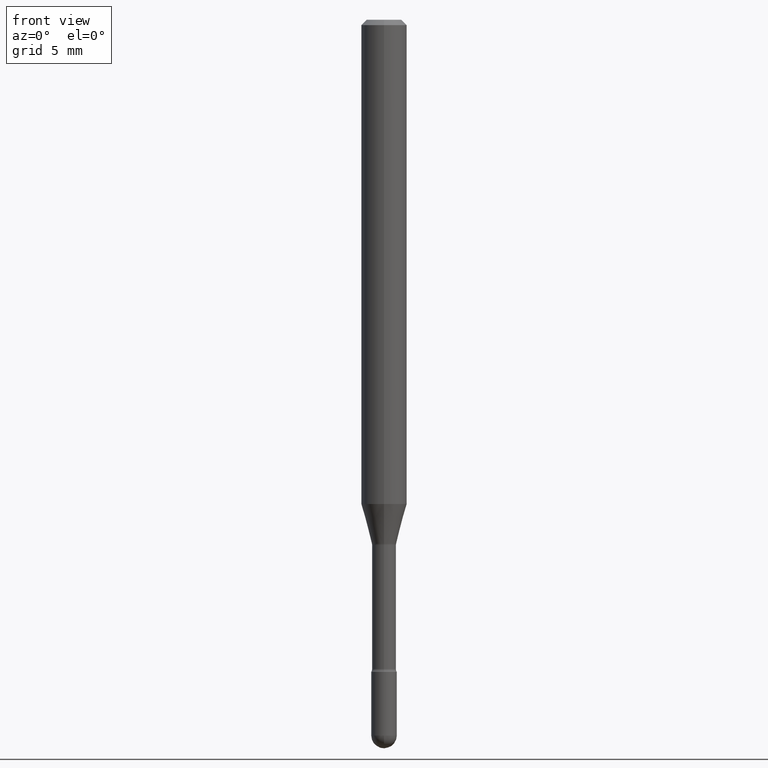
[diagram: clean part render]
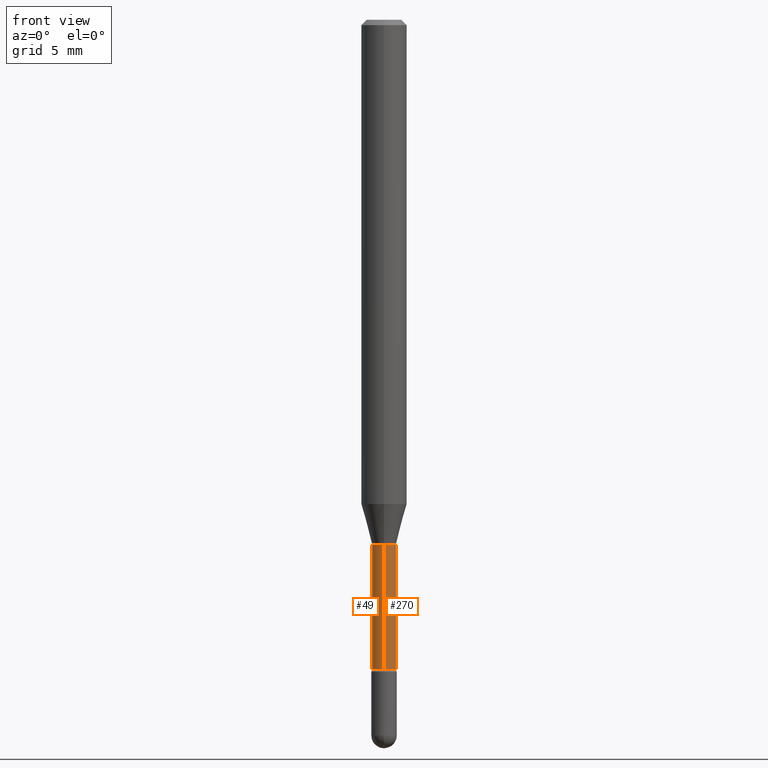
[diagram: same view with one multi-face feature highlighted, each face labeled with its STEP entity id]
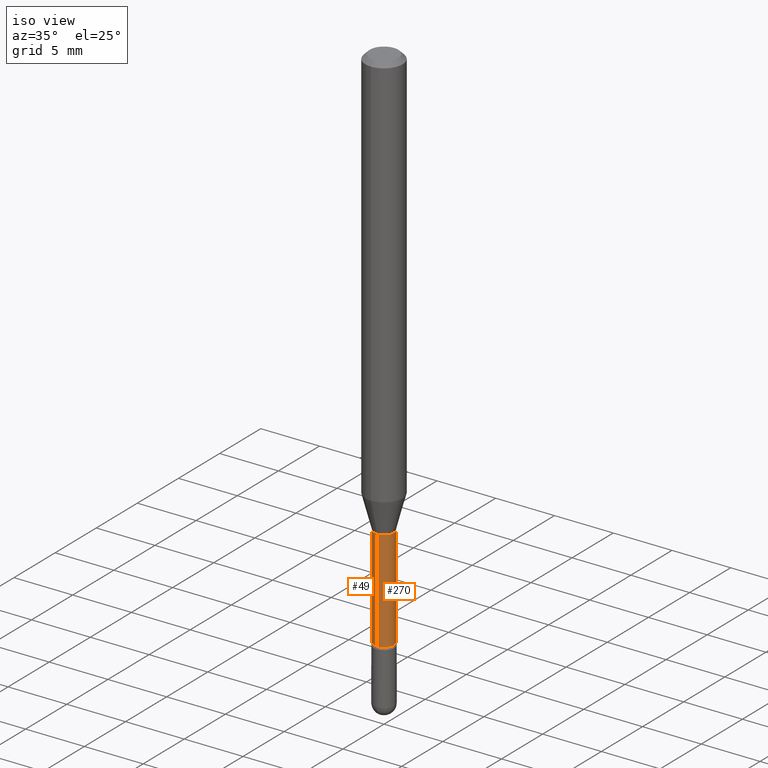
[diagram: same view with one multi-face feature highlighted, each face labeled with its STEP entity id]
A machine part, front view. The highlighted faces form ONE feature: a constant-radius fillet chain: 2 tangent blend faces with common blend radius 0.8357 mm. The faces share edges in the B-rep.
A second angle (iso view) of the same feature is appended — it is thin or edge-on in the first view.
Their STEP definitions:
[1] entity #49 (Cylinder):
#3 = FACE_OUTER_BOUND ( 'NONE', #396, .T. ) ;
#8 = EDGE_CURVE ( 'NONE', #372, #99, #413, .T. ) ;
#29 = DIRECTION ( 'NONE',  ( -2.445483522244811550E-29, 3.491460264608105036E-15, 1.000000000000000000 ) ) ;
#43 = CARTESIAN_POINT ( 'NONE',  ( 3.526325582235213320E-29, -5.034597672996613409E-15, -1.441974787463810914 ) ) ;
#49 = ADVANCED_FACE ( 'NONE', ( #3 ), #53, .T. ) ;
#53 = CYLINDRICAL_SURFACE ( 'NONE', #139, 0.03289999999999998481 ) ;
#62 = VERTEX_POINT ( 'NONE', #300 ) ;
#77 = CARTESIAN_POINT ( 'NONE',  ( 4.358696770084339745E-29, -6.222988803562137698E-15, -1.782345589506695971 ) ) ;
#87 = VECTOR ( 'NONE', #433, 39.37007874015748143 ) ;
#99 = VERTEX_POINT ( 'NONE', #204 ) ;
#109 = ORIENTED_EDGE ( 'NONE', *, *, #156, .F. ) ;
#139 = AXIS2_PLACEMENT_3D ( 'NONE', #538, #480, #262 ) ;
#156 = EDGE_CURVE ( 'NONE', #99, #462, #465, .T. ) ;
#188 = DIRECTION ( 'NONE',  ( -2.445483522244811550E-29, 3.491460264608105036E-15, 1.000000000000000000 ) ) ;
#195 = ORIENTED_EDGE ( 'NONE', *, *, #8, .F. ) ;
#204 = CARTESIAN_POINT ( 'NONE',  ( 2.337685600651165364E-16, 0.03289999999999496105, -1.441974787463810914 ) ) ;
#213 = DIRECTION ( 'NONE',  ( -6.982962677686265133E-15, -1.000000000000000000, 0.000000000000000000 ) ) ;
#251 = CIRCLE ( 'NONE', #296, 0.03289999999999996400 ) ;
#258 = CARTESIAN_POINT ( 'NONE',  ( -2.297394720958428512E-16, -0.03290000000000502939, -1.441974787463810914 ) ) ;
#262 = DIRECTION ( 'NONE',  ( -6.982962677686265922E-15, -1.000000000000000000, 3.491460264608103852E-15 ) ) ;
#288 = CARTESIAN_POINT ( 'NONE',  ( 2.412292587905978021E-16, 0.03289999999999374675, -1.782345589506695971 ) ) ;
#296 = AXIS2_PLACEMENT_3D ( 'NONE', #77, #29, #370 ) ;
#300 = CARTESIAN_POINT ( 'NONE',  ( -2.297394720958343216E-16, -0.03290000000000618818, -1.782345589506695971 ) ) ;
#336 = CARTESIAN_POINT ( 'NONE',  ( -2.297394720958780541E-16, -0.03289999999999998481, 5.929424415968526552E-16 ) ) ;
#370 = DIRECTION ( 'NONE',  ( -6.982962677686265922E-15, -1.000000000000000000, 0.000000000000000000 ) ) ;
#371 = EDGE_CURVE ( 'NONE', #372, #62, #251, .T. ) ;
#372 = VERTEX_POINT ( 'NONE', #288 ) ;
#392 = AXIS2_PLACEMENT_3D ( 'NONE', #43, #188, #213 ) ;
#396 = EDGE_LOOP ( 'NONE', ( #195, #549, #496, #109 ) ) ;
#413 = LINE ( 'NONE', #460, #563 ) ;
#424 = LINE ( 'NONE', #336, #87 ) ;
#433 = DIRECTION ( 'NONE',  ( -2.445483522244811830E-29, 3.491460264608105430E-15, 1.000000000000000000 ) ) ;
#460 = CARTESIAN_POINT ( 'NONE',  ( 2.337685600650728039E-16, 0.03289999999999998481, 3.632043561856394713E-16 ) ) ;
#462 = VERTEX_POINT ( 'NONE', #258 ) ;
#465 = CIRCLE ( 'NONE', #392, 0.03289999999999999869 ) ;
#480 = DIRECTION ( 'NONE',  ( -2.445483522244811550E-29, 3.491460264608105036E-15, 1.000000000000000000 ) ) ;
#496 = ORIENTED_EDGE ( 'NONE', *, *, #564, .T. ) ;
#538 = CARTESIAN_POINT ( 'NONE',  ( -1.169113584055446105E-44, 1.669184350826100908E-30, 4.780733988912460139E-16 ) ) ;
#549 = ORIENTED_EDGE ( 'NONE', *, *, #371, .T. ) ;
#558 = DIRECTION ( 'NONE',  ( -2.445483522244811830E-29, 3.491460264608105430E-15, 1.000000000000000000 ) ) ;
#563 = VECTOR ( 'NONE', #558, 39.37007874015748143 ) ;
#564 = EDGE_CURVE ( 'NONE', #62, #462, #424, .T. ) ;
[2] entity #270 (Cylinder):
#8 = EDGE_CURVE ( 'NONE', #372, #99, #413, .T. ) ;
#45 = CARTESIAN_POINT ( 'NONE',  ( 3.526325582235213320E-29, -5.034597672996613409E-15, -1.441974787463810914 ) ) ;
#52 = EDGE_CURVE ( 'NONE', #62, #372, #93, .T. ) ;
#62 = VERTEX_POINT ( 'NONE', #300 ) ;
#87 = VECTOR ( 'NONE', #433, 39.37007874015748143 ) ;
#93 = CIRCLE ( 'NONE', #166, 0.03289999999999996400 ) ;
#99 = VERTEX_POINT ( 'NONE', #204 ) ;
#107 = CYLINDRICAL_SURFACE ( 'NONE', #425, 0.03289999999999998481 ) ;
#133 = EDGE_CURVE ( 'NONE', #462, #99, #243, .T. ) ;
#138 = DIRECTION ( 'NONE',  ( -6.982962677686265922E-15, -1.000000000000000000, 0.000000000000000000 ) ) ;
#143 = DIRECTION ( 'NONE',  ( -6.982962677686265922E-15, -1.000000000000000000, 3.491460264608103852E-15 ) ) ;
#145 = EDGE_LOOP ( 'NONE', ( #438, #149, #321, #271 ) ) ;
#149 = ORIENTED_EDGE ( 'NONE', *, *, #8, .T. ) ;
#166 = AXIS2_PLACEMENT_3D ( 'NONE', #175, #530, #138 ) ;
#175 = CARTESIAN_POINT ( 'NONE',  ( 4.358696770084339745E-29, -6.222988803562137698E-15, -1.782345589506695971 ) ) ;
#204 = CARTESIAN_POINT ( 'NONE',  ( 2.337685600651165364E-16, 0.03289999999999496105, -1.441974787463810914 ) ) ;
#224 = DIRECTION ( 'NONE',  ( -2.445483522244811550E-29, 3.491460264608105036E-15, 1.000000000000000000 ) ) ;
#243 = CIRCLE ( 'NONE', #365, 0.03289999999999999869 ) ;
#258 = CARTESIAN_POINT ( 'NONE',  ( -2.297394720958428512E-16, -0.03290000000000502939, -1.441974787463810914 ) ) ;
#270 = ADVANCED_FACE ( 'NONE', ( #495 ), #107, .T. ) ;
#271 = ORIENTED_EDGE ( 'NONE', *, *, #564, .F. ) ;
#276 = CARTESIAN_POINT ( 'NONE',  ( -1.169113584055446105E-44, 1.669184350826100908E-30, 4.780733988912460139E-16 ) ) ;
#288 = CARTESIAN_POINT ( 'NONE',  ( 2.412292587905978021E-16, 0.03289999999999374675, -1.782345589506695971 ) ) ;
#300 = CARTESIAN_POINT ( 'NONE',  ( -2.297394720958343216E-16, -0.03290000000000618818, -1.782345589506695971 ) ) ;
#321 = ORIENTED_EDGE ( 'NONE', *, *, #133, .F. ) ;
#336 = CARTESIAN_POINT ( 'NONE',  ( -2.297394720958780541E-16, -0.03289999999999998481, 5.929424415968526552E-16 ) ) ;
#365 = AXIS2_PLACEMENT_3D ( 'NONE', #45, #532, #486 ) ;
#372 = VERTEX_POINT ( 'NONE', #288 ) ;
#413 = LINE ( 'NONE', #460, #563 ) ;
#424 = LINE ( 'NONE', #336, #87 ) ;
#425 = AXIS2_PLACEMENT_3D ( 'NONE', #276, #224, #143 ) ;
#433 = DIRECTION ( 'NONE',  ( -2.445483522244811830E-29, 3.491460264608105430E-15, 1.000000000000000000 ) ) ;
#438 = ORIENTED_EDGE ( 'NONE', *, *, #52, .T. ) ;
#460 = CARTESIAN_POINT ( 'NONE',  ( 2.337685600650728039E-16, 0.03289999999999998481, 3.632043561856394713E-16 ) ) ;
#462 = VERTEX_POINT ( 'NONE', #258 ) ;
#486 = DIRECTION ( 'NONE',  ( -6.982962677686265133E-15, -1.000000000000000000, 0.000000000000000000 ) ) ;
#495 = FACE_OUTER_BOUND ( 'NONE', #145, .T. ) ;
#530 = DIRECTION ( 'NONE',  ( -2.445483522244811550E-29, 3.491460264608105036E-15, 1.000000000000000000 ) ) ;
#532 = DIRECTION ( 'NONE',  ( -2.445483522244811550E-29, 3.491460264608105036E-15, 1.000000000000000000 ) ) ;
#558 = DIRECTION ( 'NONE',  ( -2.445483522244811830E-29, 3.491460264608105430E-15, 1.000000000000000000 ) ) ;
#563 = VECTOR ( 'NONE', #558, 39.37007874015748143 ) ;
#564 = EDGE_CURVE ( 'NONE', #62, #462, #424, .T. ) ;